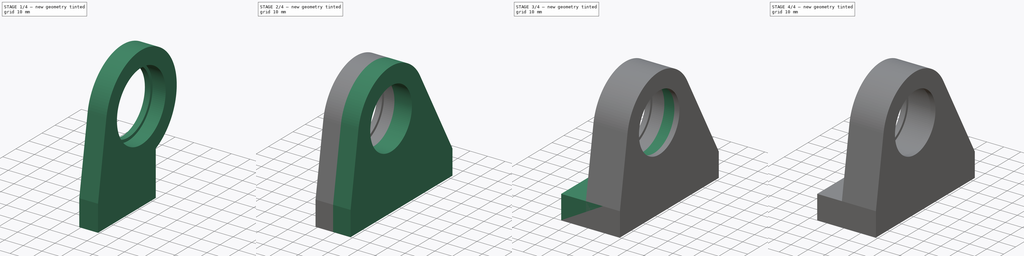
[diagram: build sequence overview — one tinted view per stage of 4, left to right]
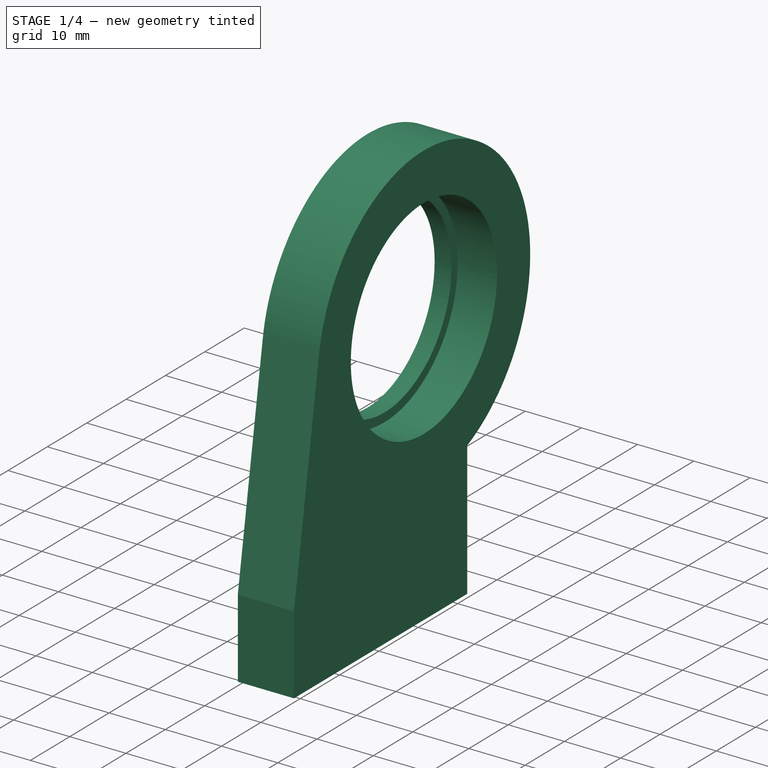
[diagram: stage 1 of 4 — iso view after this stage's code; geometry added in this stage tinted green]
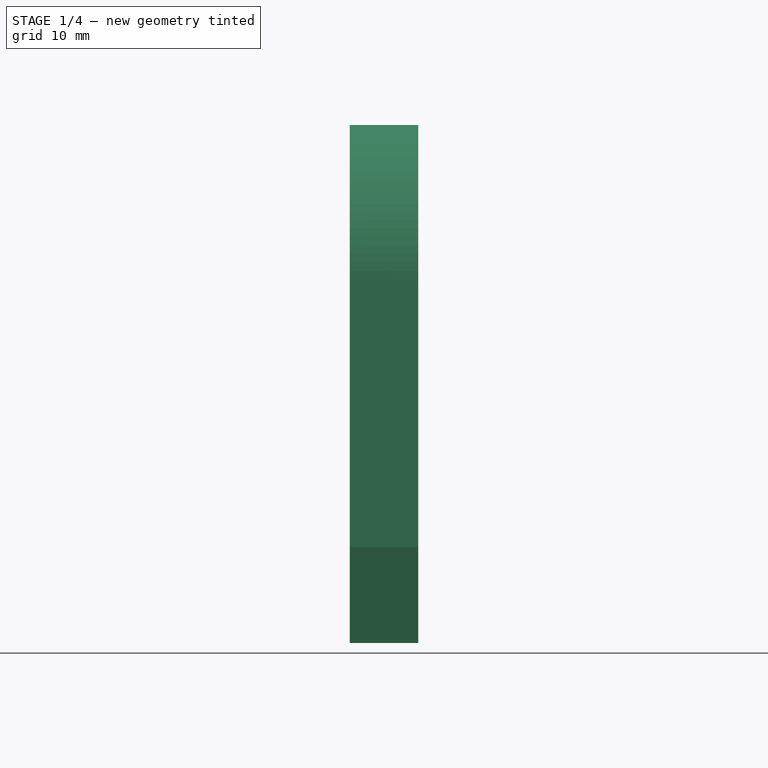
[diagram: stage 1 of 4 — front view after this stage's code; geometry added in this stage tinted green]
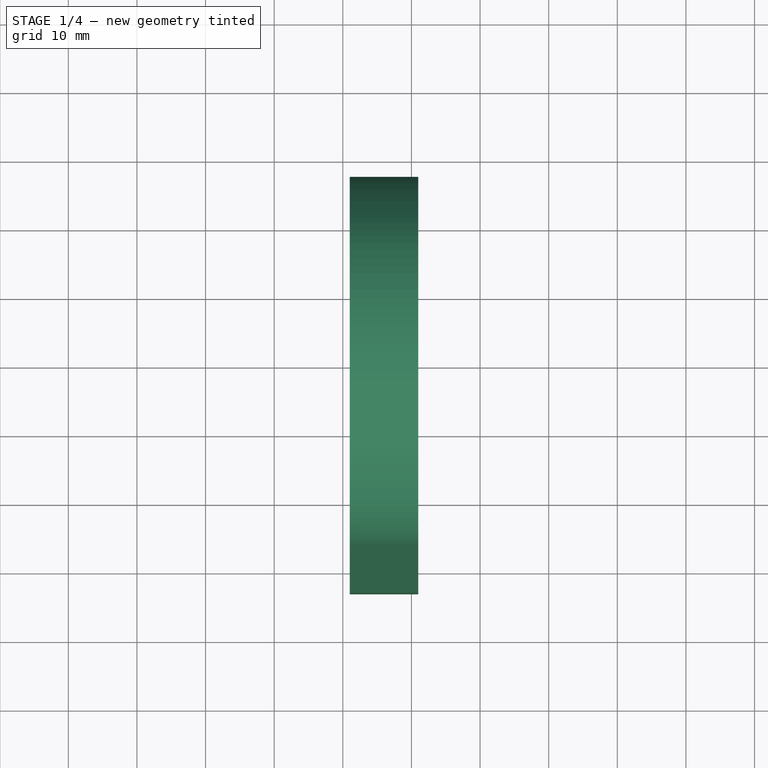
[diagram: stage 1 of 4 — top view after this stage's code; geometry added in this stage tinted green]
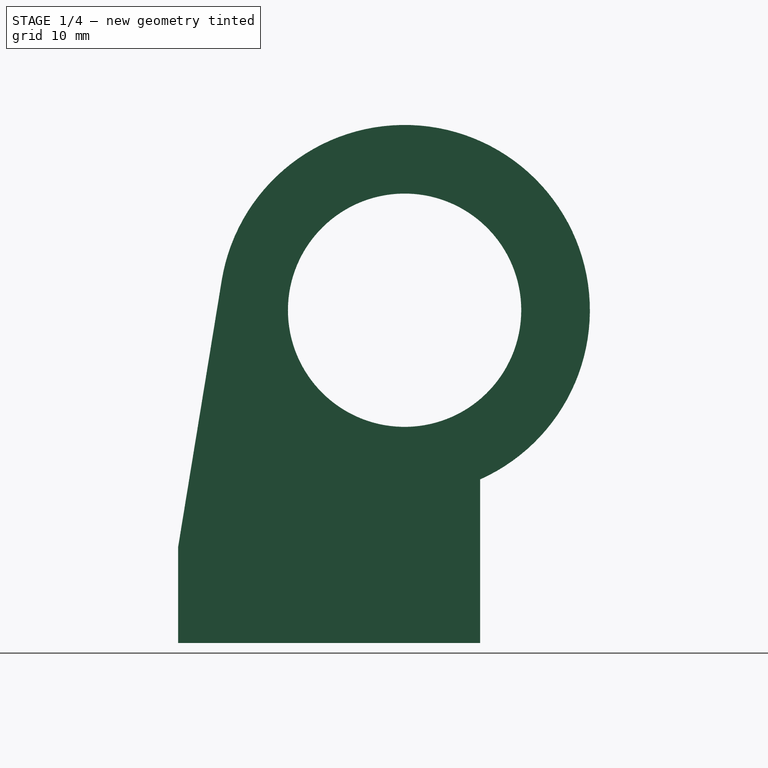
[diagram: stage 1 of 4 — right view after this stage's code; geometry added in this stage tinted green]
FCSTD DOCUMENT  (FreeCAD 0.21R32110 (Git))
Label: Pitch_Pulley_Mount
License: All rights reserved
LicenseURL: http://en.wikipedia.org/wiki/All_rights_reserved
objects: Sketcher::SketchObject×9, PartDesign::Pocket×4, PartDesign::Pad×3, PartDesign::Hole×2, PartDesign::Body×2, PartDesign::Chamfer×1, App::Part×1
note: 31 computed .brp shape members not serialized (recipe doc carries the construction recipe); baked Part::Feature solids carry a one-line shape summary decoded from their .brp

FEATURE [Sketcher::SketchObject] Sketch049
  AttachmentOffset = pos=(0,0,81) rot=(0,0,1;0rad)
  FullyConstrained = true
  MapMode = 5
  Placement = pos=(81,-1.8e-14,1.8e-14) rot=(0.57735,0.57735,0.57735;2.0944rad)
  Support = -> [YZ_Plane017]
  sketch-geometry (6):
    g0: ArcOfCircle CenterX=-10 CenterY=-10 CenterZ=0 NormalX=0 NormalY=0 NormalZ=1 AngleXU=0 Radius=27 StartAngle=5.132 EndAngle=9.26269
    g1: LineSegment StartX=-43 StartY=-58.5 StartZ=0 EndX=1 EndY=-58.5 EndZ=0
    g2: LineSegment StartX=1 StartY=-58.5 StartZ=0 EndX=1 EndY=-34.6577 EndZ=0
    g3: LineSegment StartX=-43 StartY=-58.5 StartZ=0 EndX=-43 EndY=-44.5 EndZ=0
    g4: LineSegment StartX=-43 StartY=-44.5 StartZ=0 EndX=-36.6461 EndY=-5.64285 EndZ=0
    g5: Circle CenterX=-10 CenterY=-10 CenterZ=0 NormalX=0 NormalY=0 NormalZ=1 AngleXU=0 Radius=17
  constraints (17):
    c: DistanceX(g0) = -10
    c: DistanceY(g0) = -10
    c: Diameter(g0) = 54
    c: Horizontal(g1)
    c: Coincident(g2,g1)
    c: Vertical(g2)
    c: Vertical(g3)
    c: Distance(g3) = 14
    c: Coincident(g3,g1)
    c: Coincident(g4,g3)
    c: Tangent(g0,g4) = 1.5708
    c: DistanceX(g1) = -43
    c: DistanceY(g1) = -58.5
    c: Coincident(g5,g0)
    c: Diameter(g5) = 34
    c: Distance(g1) = 44
    c: Coincident(g0,g2)
FEATURE [PartDesign::Pad] Pad030
  Direction = (1,-2e-16,3e-16)
  Length = 10
  Length2 = 10
  Placement = pos=(0,0,0) rot=(0.57735,0.57735,0.57735;2.0944rad)
  Profile = -> Sketch049
  ReferenceAxis = -> Sketch049 [N_Axis]
  Type = 0
FEATURE [Sketcher::SketchObject] Sketch
  AttachmentOffset = pos=(0,0,91) rot=(0,0,1;0rad)
  FullyConstrained = true
  MapMode = 5
  Placement = pos=(91,-2.02e-14,2.02e-14) rot=(0.57735,0.57735,0.57735;2.0944rad)
  Support = -> [YZ_Plane017]
  sketch-geometry (1):
    g0: Circle CenterX=-10 CenterY=-10 CenterZ=0 NormalX=0 NormalY=0 NormalZ=1 AngleXU=0 Radius=18.575
  constraints (3):
    c: DistanceY(g0) = -10
    c: DistanceX(g0) = -10
    c: Diameter(g0) = 37.15
FEATURE [PartDesign::Pocket] Pocket
  BaseFeature = -> Pad030
  Direction = (-1,2e-16,-3e-16)
  Length = 7
  Length2 = 5
  Placement = pos=(0,0,0) rot=(0.57735,0.57735,0.57735;2.0944rad)
  Profile = -> Sketch
  ReferenceAxis = -> Sketch [N_Axis]
  Type = 0
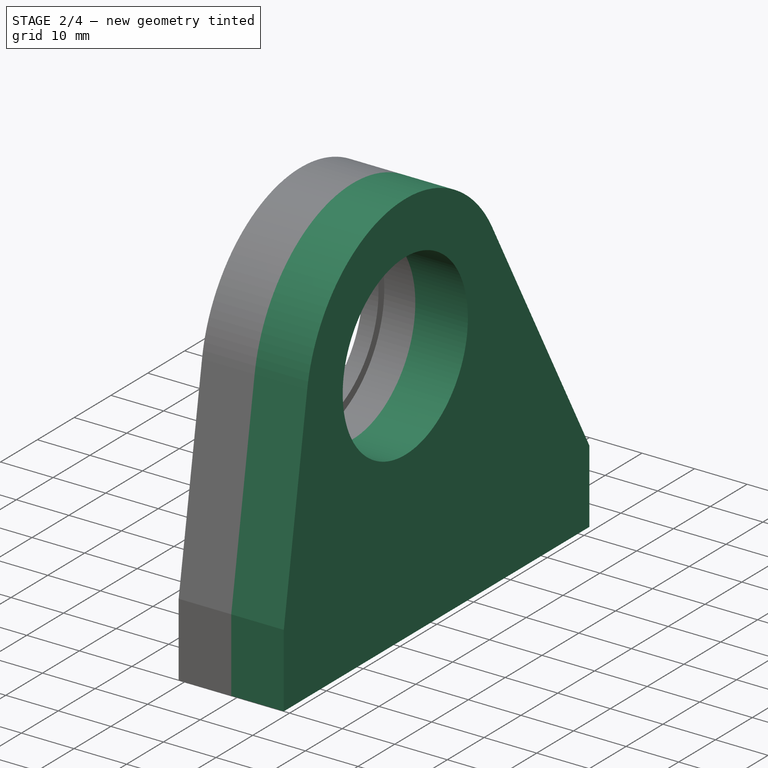
[diagram: stage 2 of 4 — iso view after this stage's code; geometry added in this stage tinted green]
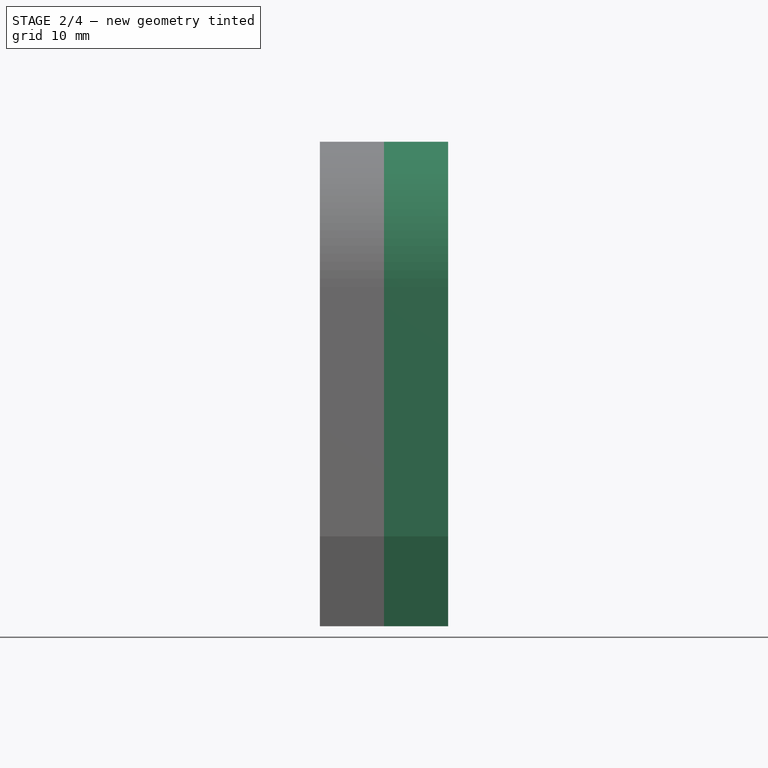
[diagram: stage 2 of 4 — front view after this stage's code; geometry added in this stage tinted green]
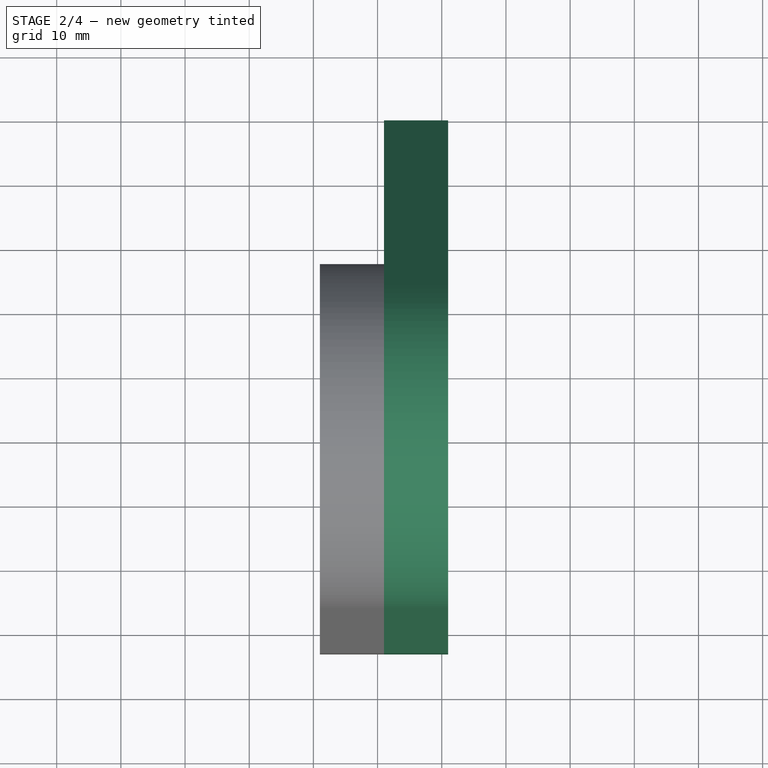
[diagram: stage 2 of 4 — top view after this stage's code; geometry added in this stage tinted green]
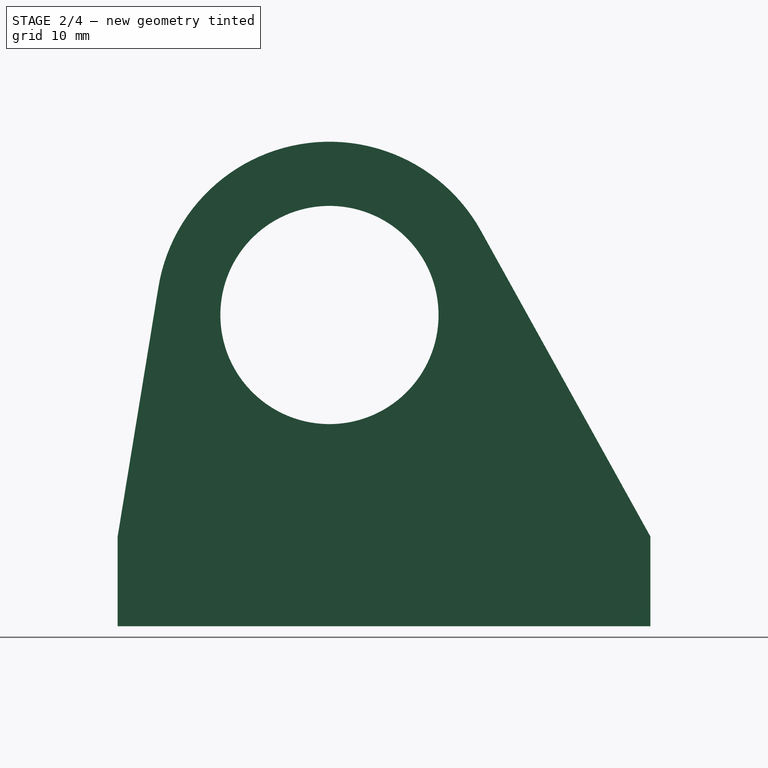
[diagram: stage 2 of 4 — right view after this stage's code; geometry added in this stage tinted green]
FEATURE [Sketcher::SketchObject] Sketch053
  AttachmentOffset = pos=(0,0,91) rot=(0,0,1;0rad)
  FullyConstrained = true
  MapMode = 5
  Placement = pos=(91,-2.02e-14,2.02e-14) rot=(0.57735,0.57735,0.57735;2.0944rad)
  Support = -> [YZ_Plane019]
  sketch-geometry (7):
    g0: ArcOfCircle CenterX=-10 CenterY=-10 CenterZ=0 NormalX=0 NormalY=0 NormalZ=1 AngleXU=0 Radius=27 StartAngle=0.506238 EndAngle=2.97951
    g1: LineSegment StartX=-43 StartY=-58.5 StartZ=0 EndX=40 EndY=-58.5 EndZ=0
    g2: LineSegment StartX=40 StartY=-58.5 StartZ=0 EndX=40 EndY=-44.5 EndZ=0
    g3: LineSegment StartX=40 StartY=-44.5 StartZ=0 EndX=13.6135 EndY=3.09205 EndZ=0
    g4: Circle CenterX=-10 CenterY=-10 CenterZ=0 NormalX=0 NormalY=0 NormalZ=1 AngleXU=0 Radius=17
    g5: LineSegment StartX=-43 StartY=-58.5 StartZ=0 EndX=-43 EndY=-44.5 EndZ=0
    g6: LineSegment StartX=-43 StartY=-44.5 StartZ=0 EndX=-36.6461 EndY=-5.64285 EndZ=0
  constraints (19):
    c: DistanceX(g0) = -10
    c: DistanceY(g0) = -10
    c: Horizontal(g1)
    c: DistanceY(g1) = -58.5
    c: Diameter(g0) = 54
    c: Coincident(g2,g1)
    c: Vertical(g2)
    c: DistanceY(g2,g2) = 14
    c: Coincident(g3,g2)
    c: Tangent(g0,g3) = -1.5708
    c: Coincident(g4,g0)
    c: Diameter(g4) = 34
    c: DistanceX(g1) = 40
    c: DistanceX(g1) = -43
    c: Coincident(g5,g1)
    c: Vertical(g5)
    c: Equal(g5,g2)
    c: Coincident(g6,g5)
    c: Tangent(g0,g6) = 1.5708
FEATURE [PartDesign::Pad] Pad033
  Direction = (1,-2e-16,3e-16)
  Length = 10
  Length2 = 10
  Placement = pos=(0,0,0) rot=(0.57735,0.57735,0.57735;2.0944rad)
  Profile = -> Sketch053
  ReferenceAxis = -> Sketch053 [N_Axis]
  Type = 0
FEATURE [Sketcher::SketchObject] Sketch031
  AttachmentOffset = pos=(0,0,81) rot=(0,0,1;0rad)
  FullyConstrained = true
  MapMode = 5
  Placement = pos=(81,-1.8e-14,1.8e-14) rot=(0.57735,0.57735,0.57735;2.0944rad)
  Support = -> [YZ_Plane017]
  sketch-geometry (2):
    g0: Circle CenterX=-34 CenterY=-51.5 CenterZ=0 NormalX=0 NormalY=0 NormalZ=1 AngleXU=0 Radius=2.65
    g1: Circle CenterX=-8 CenterY=-51.5 CenterZ=0 NormalX=0 NormalY=0 NormalZ=1 AngleXU=0 Radius=2.65
  constraints (6):
    c: Diameter(g0) = 5.3
    c: Distance(g0,g1) = 26
    c: DistanceY(g1) = -51.5
    c: DistanceX(g1) = -8
    c: Equal(g0,g1)
    c: Horizontal(g0,g1)
FEATURE [PartDesign::Hole] Hole
  BaseFeature = -> Pocket
  CustomThreadClearance = 0
  Depth = 25
  DepthType = 0
  Diameter = 5.3
  DrillForDepth = false
  DrillPoint = 1
  DrillPointAngle = 118
  HoleCutCountersinkAngle = 90
  HoleCutCustomValues = false
  HoleCutDepth = 5.4
  HoleCutDiameter = 8.7
  HoleCutType = 1
  ModelThread = false
  Placement = pos=(0,0,0) rot=(0.57735,0.57735,0.57735;2.0944rad)
  Profile = -> Sketch031
  Reversed = true
  Tapered = false
  TaperedAngle = 90
  ThreadClass = 0
  ThreadDepth = 25
  ThreadDepthType = 0
  ThreadDirection = 0
  ThreadFit = 1
  ThreadSize = 13
  ThreadType = 1
  Threaded = false
  UseCustomThreadClearance = false
FEATURE [PartDesign::Body] Body014  label="Pitch Encoder Pulley Mount"
  Group = -> [Sketch053,Pad033,Sketch057,Pocket018,Sketch058,Pad,Chamfer,Sketch059,Pocket019,Sketch060,Hole001]
  Origin = -> Origin019
  Placement = pos=(18.5,0,0) rot=(0,0,1;0rad)
  Tip = -> Hole001
FEATURE [Sketcher::SketchObject] Sketch061
  AttachmentOffset = pos=(0,0,81) rot=(0,0,1;0rad)
  FullyConstrained = true
  MapMode = 5
  Placement = pos=(81,-1.8e-14,1.8e-14) rot=(0.57735,0.57735,0.57735;2.0944rad)
  Support = -> [YZ_Plane017]
  sketch-geometry (6):
    g0: LineSegment StartX=-10 StartY=-10 StartZ=0 EndX=-29.0526 EndY=1 EndZ=0
    g1: LineSegment StartX=-10 StartY=-10 StartZ=0 EndX=9.05256 EndY=1 EndZ=0
    g2: LineSegment StartX=-10 StartY=-10 StartZ=0 EndX=-10 EndY=-32 EndZ=0
    g3: Circle CenterX=-29.0526 CenterY=1 CenterZ=0 NormalX=0 NormalY=0 NormalZ=1 AngleXU=0 Radius=2.2
    g4: Circle CenterX=9.05256 CenterY=1 CenterZ=0 NormalX=0 NormalY=0 NormalZ=1 AngleXU=0 Radius=2.2
    g5: Circle CenterX=-10 CenterY=-32 CenterZ=0 NormalX=0 NormalY=0 NormalZ=1 AngleXU=0 Radius=2.2
  constraints (16):
    c: DistanceY(g0) = -10
    c: DistanceX(g0) = -10
    c: Coincident(g1,g0)
    c: Coincident(g2,g0)
    c: Vertical(g2)
    c: Equal(g0,g1)
    c: Equal(g1,g2)
    c: Distance(g0) = 22
    c: Angle(g0,g2) = 2.0944
    c: Angle(g2,g1) = 2.0944
    c: Coincident(g3,g0)
    c: Coincident(g4,g1)
    c: Coincident(g5,g2)
    c: Equal(g3,g4)
    c: Equal(g3,g5)
    c: Diameter(g3) = 4.4
FEATURE [PartDesign::Pocket] Pocket020
  BaseFeature = -> Hole
  Direction = (-1,2e-16,-3e-16)
  Length = 5
  Length2 = 5
  Placement = pos=(0,0,0) rot=(0.57735,0.57735,0.57735;2.0944rad)
  Profile = -> Sketch061
  ReferenceAxis = -> Sketch061 [N_Axis]
  Reversed = true
  Type = 1
FEATURE [PartDesign::Body] Body012  label="Pitch Encoder Mount"
  Group = -> [Sketch049,Pad030,Sketch,Pocket,Sketch031,Hole,Sketch061,Pocket020]
  Origin = -> Origin017
  Placement = pos=(-6,0,0) rot=(0,0,1;0rad)
  Tip = -> Pocket020
FEATURE [App::Part] Part  label="Pitch_Pulley_Mount_Assy"
  Group = -> [Body012,Body014]
  Origin = -> Origin
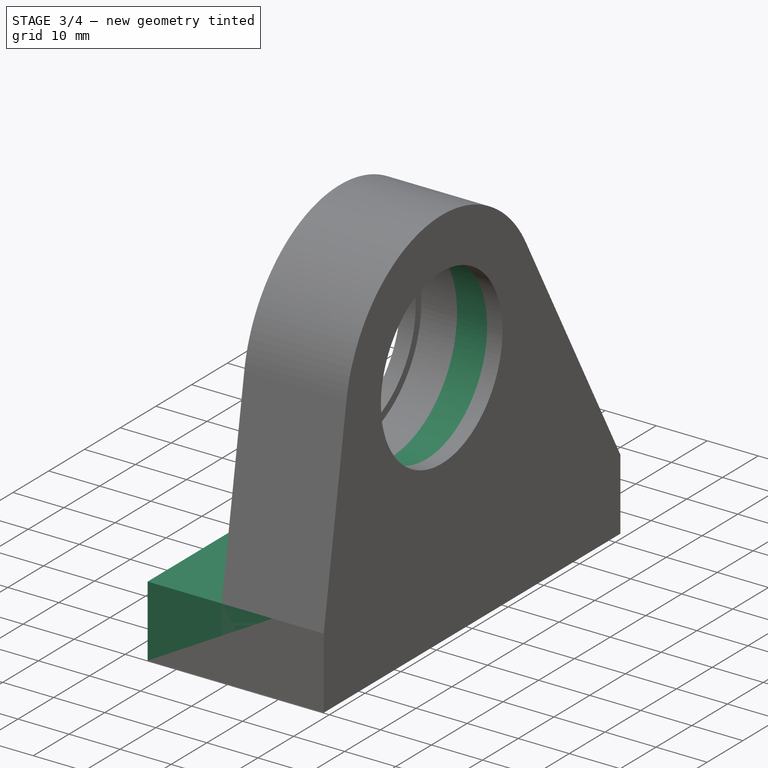
[diagram: stage 3 of 4 — iso view after this stage's code; geometry added in this stage tinted green]
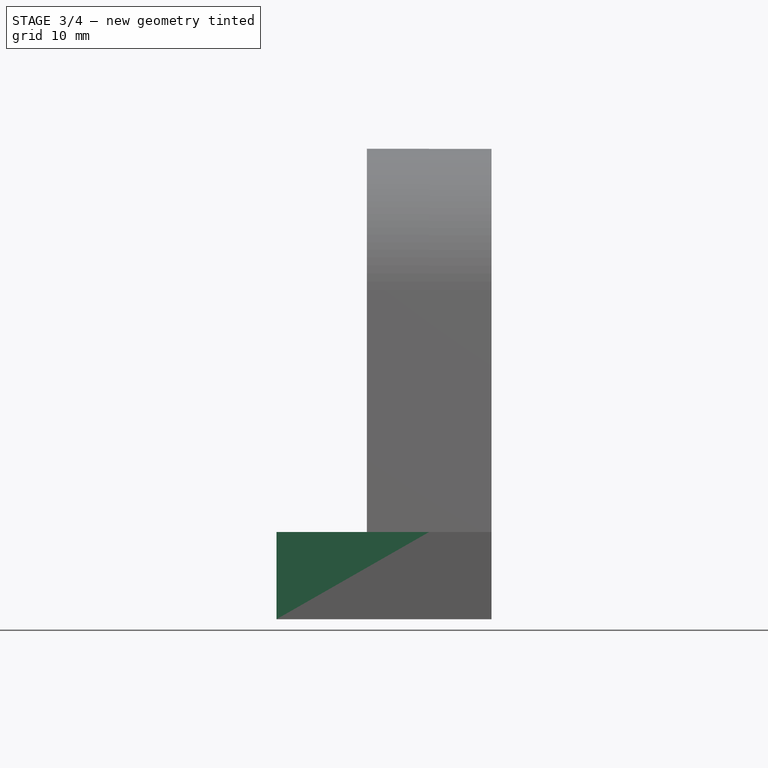
[diagram: stage 3 of 4 — front view after this stage's code; geometry added in this stage tinted green]
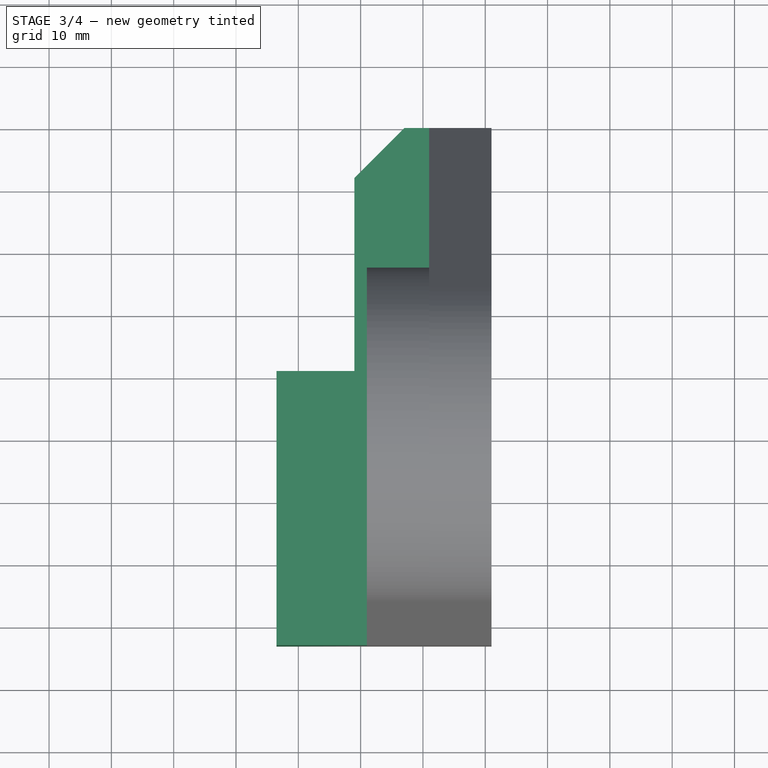
[diagram: stage 3 of 4 — top view after this stage's code; geometry added in this stage tinted green]
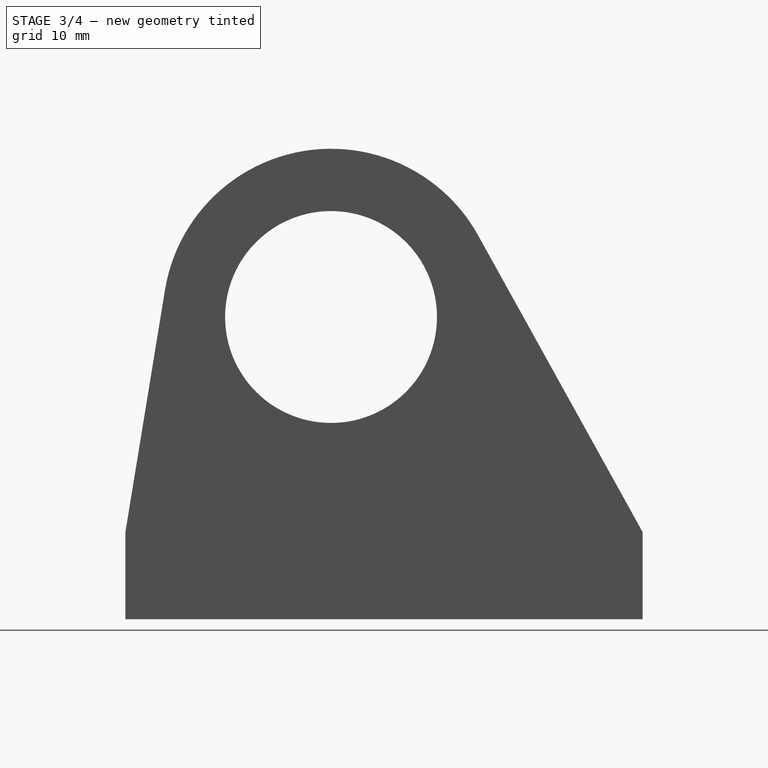
[diagram: stage 3 of 4 — right view after this stage's code; geometry added in this stage tinted green]
FEATURE [Sketcher::SketchObject] Sketch057
  AttachmentOffset = pos=(0,0,91) rot=(0,0,1;0rad)
  FullyConstrained = true
  MapMode = 5
  Placement = pos=(91,-2.02e-14,2.02e-14) rot=(0.57735,0.57735,0.57735;2.0944rad)
  Support = -> [YZ_Plane019]
  sketch-geometry (1):
    g0: Circle CenterX=-10 CenterY=-10 CenterZ=0 NormalX=0 NormalY=0 NormalZ=1 AngleXU=0 Radius=18.575
  constraints (3):
    c: Diameter(g0) = 37.15
    c: DistanceY(g0) = -10
    c: DistanceX(g0) = -10
FEATURE [PartDesign::Pocket] Pocket018
  BaseFeature = -> Pad033
  Direction = (-1,2e-16,-3e-16)
  Length = 7
  Length2 = 5
  Placement = pos=(0,0,0) rot=(0.57735,0.57735,0.57735;2.0944rad)
  Profile = -> Sketch057
  ReferenceAxis = -> Sketch057 [N_Axis]
  Reversed = true
  Type = 0
FEATURE [Sketcher::SketchObject] Sketch058
  AttachmentOffset = pos=(0,0,-58.5) rot=(0,0,1;0rad)
  FullyConstrained = true
  MapMode = 5
  Placement = pos=(0,0,-58.5) rot=(0,0,1;0rad)
  Support = -> [XY_Plane019]
  sketch-geometry (6):
    g0: LineSegment StartX=91 StartY=40 StartZ=0 EndX=79 EndY=40 EndZ=0
    g1: LineSegment StartX=79 StartY=40 StartZ=0 EndX=79 EndY=1 EndZ=0
    g2: LineSegment StartX=79 StartY=1 StartZ=0 EndX=66.5 EndY=1 EndZ=0
    g3: LineSegment StartX=66.5 StartY=1 StartZ=0 EndX=66.5 EndY=-43 EndZ=0
    g4: LineSegment StartX=66.5 StartY=-43 StartZ=0 EndX=91 EndY=-43 EndZ=0
    g5: LineSegment StartX=91 StartY=-43 StartZ=0 EndX=91 EndY=40 EndZ=0
  constraints (18):
    c: Coincident(g0,g1)
    c: Vertical(g1)
    c: Coincident(g1,g2)
    c: Horizontal(g2)
    c: Coincident(g2,g3)
    c: Vertical(g3)
    c: Coincident(g3,g4)
    c: Horizontal(g4)
    c: Coincident(g4,g5)
    c: Coincident(g5,g0)
    c: Vertical(g5)
    c: Horizontal(g0)
    c: Distance(g0) = 12
    c: DistanceY(g0) = 40
    c: DistanceX(g0) = 91
    c: Distance(g5) = 83
    c: Distance(g4) = 24.5
    c: DistanceY(g3,g3) = 44
FEATURE [PartDesign::Pad] Pad
  BaseFeature = -> Pocket018
  Direction = (0,0,1)
  Length = 14
  Length2 = 10
  Placement = pos=(0,0,0) rot=(0.57735,0.57735,0.57735;2.0944rad)
  Profile = -> Sketch058
  ReferenceAxis = -> Sketch058 [N_Axis]
  Type = 0
FEATURE [PartDesign::Chamfer] Chamfer
  Angle = 45
  Base = -> Pad [Edge26]
  BaseFeature = -> Pad
  ChamferType = 0
  FlipDirection = false
  Placement = pos=(0,0,0) rot=(0.57735,0.57735,0.57735;2.0944rad)
  Size = 8
  Size2 = 1
  SupportTransform = false
  UseAllEdges = false
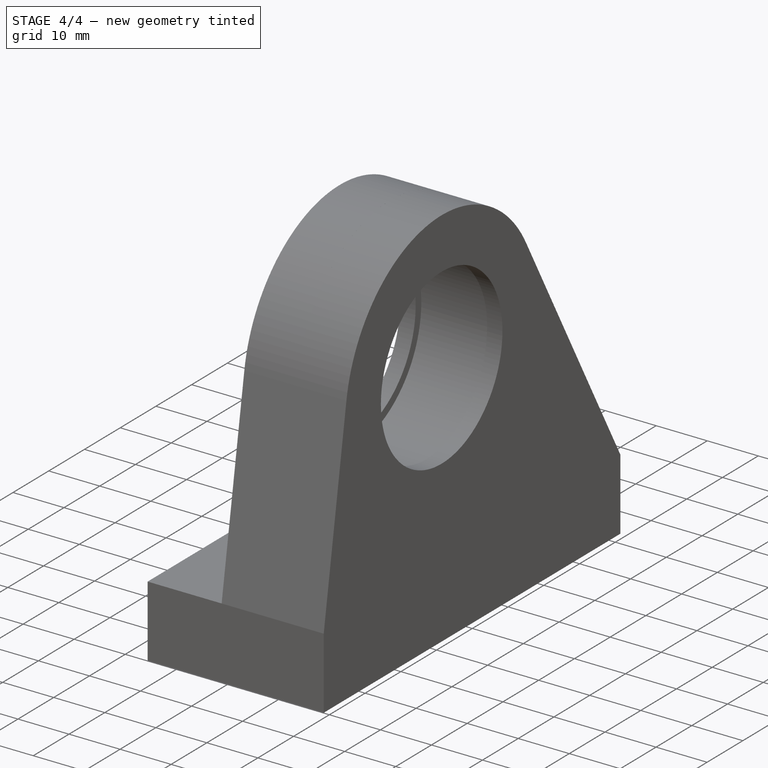
[diagram: stage 4 of 4 — iso view after this stage's code; geometry added in this stage tinted green]
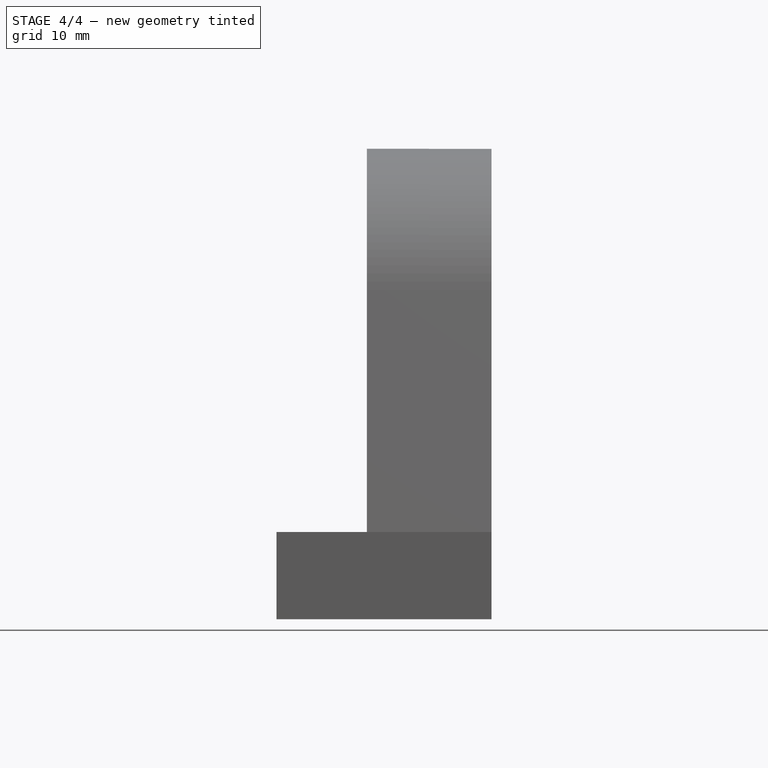
[diagram: stage 4 of 4 — front view after this stage's code; geometry added in this stage tinted green]
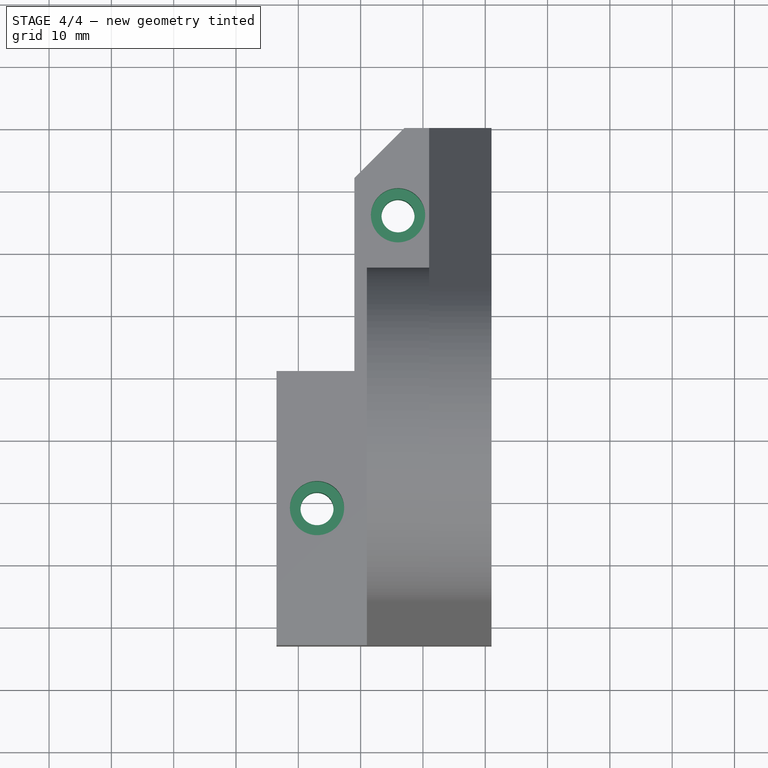
[diagram: stage 4 of 4 — top view after this stage's code; geometry added in this stage tinted green]
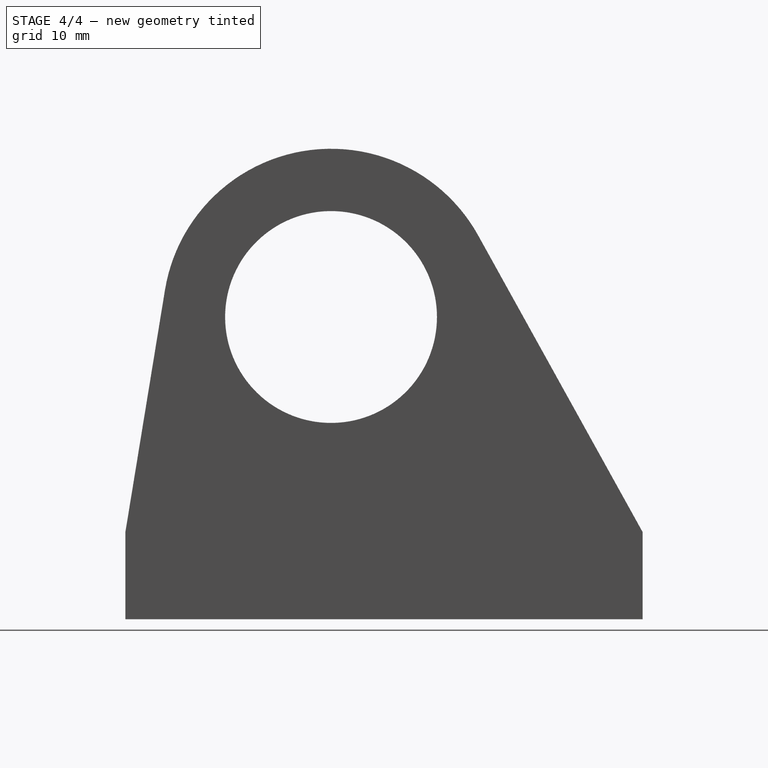
[diagram: stage 4 of 4 — right view after this stage's code; geometry added in this stage tinted green]
FEATURE [Sketcher::SketchObject] Sketch059
  AttachmentOffset = pos=(-15,-23,66.5) rot=(0,0,1;0rad)
  FullyConstrained = true
  MapMode = 5
  Placement = pos=(66.5,-15,-23) rot=(0.57735,0.57735,0.57735;2.0944rad)
  Support = -> [YZ_Plane019]
  sketch-geometry (2):
    g0: Circle CenterX=-19 CenterY=-28.5 CenterZ=0 NormalX=0 NormalY=0 NormalZ=1 AngleXU=0 Radius=3.5
    g1: Circle CenterX=7 CenterY=-28.5 CenterZ=0 NormalX=0 NormalY=0 NormalZ=1 AngleXU=0 Radius=3.5
  constraints (6):
    c: Diameter(g0) = 7
    c: DistanceX(g1) = 7
    c: DistanceY(g1) = -28.5
    c: Horizontal(g0,g1)
    c: Distance(g0,g1) = 26
    c: Equal(g0,g1)
FEATURE [PartDesign::Pocket] Pocket019
  BaseFeature = -> Chamfer
  Direction = (-1,2e-16,-3e-16)
  Length = 12
  Length2 = 5
  Placement = pos=(0,0,0) rot=(0.57735,0.57735,0.57735;2.0944rad)
  Profile = -> Sketch059
  ReferenceAxis = -> Sketch059 [N_Axis]
  Reversed = true
  Type = 0
FEATURE [Sketcher::SketchObject] Sketch060
  AttachmentOffset = pos=(1,0,-44.5) rot=(0,0,1;0rad)
  FullyConstrained = true
  MapMode = 5
  Placement = pos=(1,0,-44.5) rot=(0,0,1;0rad)
  Support = -> [XY_Plane019]
  sketch-geometry (3):
    g0: Circle CenterX=85 CenterY=26 CenterZ=0 NormalX=0 NormalY=0 NormalZ=1 AngleXU=0 Radius=4.35
    g1: Circle CenterX=72 CenterY=-21 CenterZ=0 NormalX=0 NormalY=0 NormalZ=1 AngleXU=0 Radius=4.35
    g2: Circle CenterX=85 CenterY=-34 CenterZ=0 NormalX=0 NormalY=0 NormalZ=1 AngleXU=0 Radius=4.35
  constraints (9):
    c: Equal(g0,g1)
    c: Equal(g1,g2)
    c: Diameter(g0) = 8.7
    c: Vertical(g0,g2)
    c: DistanceX(g0) = 85
    c: DistanceY(g0) = 26
    c: Distance(g0,g2) = 60
    c: DistanceX(g1) = 72
    c: DistanceY(g1) = -21
FEATURE [PartDesign::Hole] Hole001
  BaseFeature = -> Pocket019
  CustomThreadClearance = 0
  Depth = 237.1
  DepthType = 1
  Diameter = 5.3
  DrillForDepth = false
  DrillPoint = 1
  DrillPointAngle = 118
  HoleCutCountersinkAngle = 90
  HoleCutCustomValues = false
  HoleCutDepth = 5.4
  HoleCutDiameter = 8.7
  HoleCutType = 1
  ModelThread = false
  Placement = pos=(0,0,0) rot=(0.57735,0.57735,0.57735;2.0944rad)
  Profile = -> Sketch060
  Tapered = false
  TaperedAngle = 90
  ThreadClass = 0
  ThreadDepth = 237.1
  ThreadDepthType = 0
  ThreadDirection = 0
  ThreadFit = 1
  ThreadSize = 13
  ThreadType = 1
  Threaded = false
  UseCustomThreadClearance = false
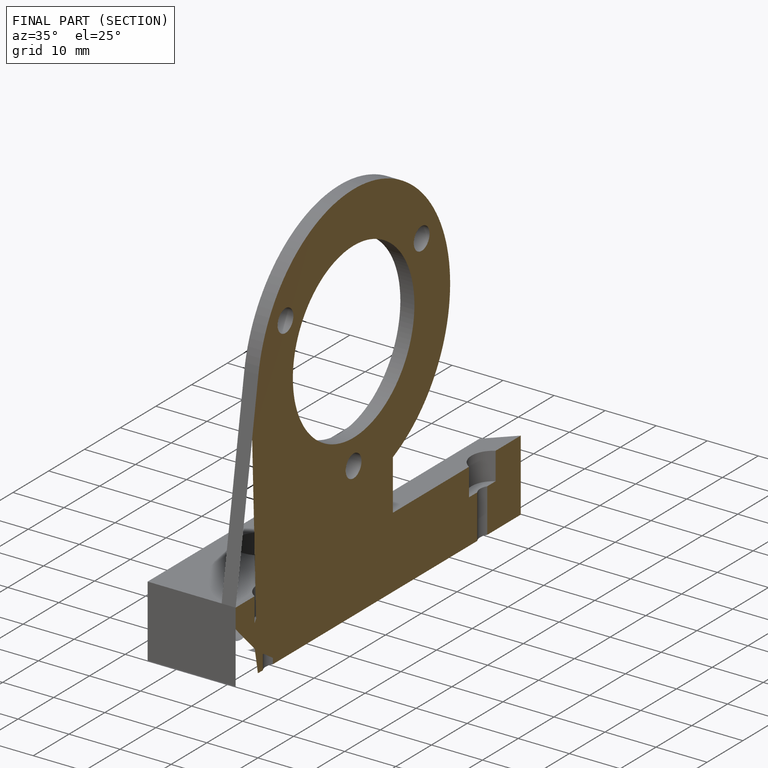
[diagram: finished part — half-section view (interior)]
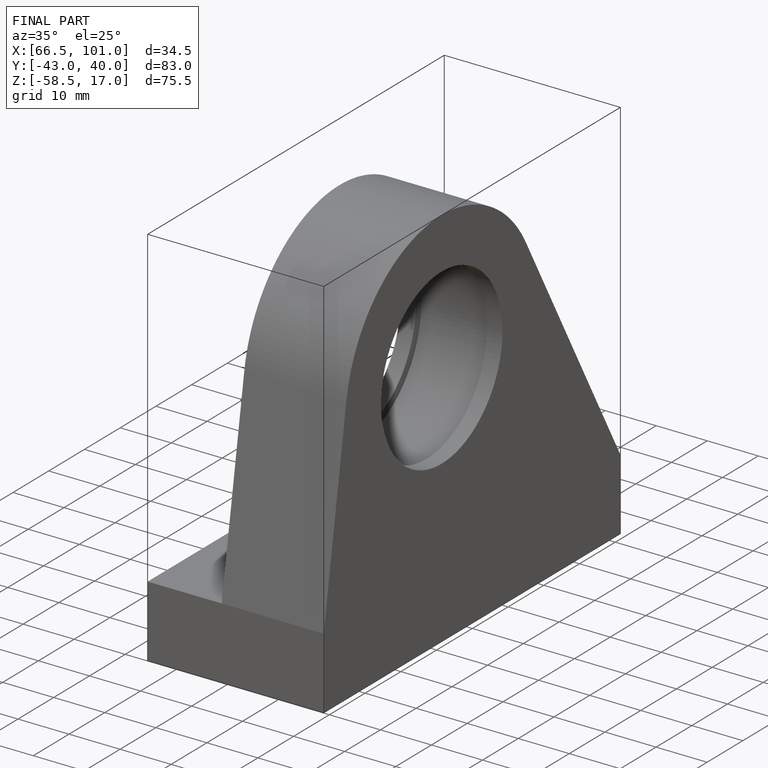
[diagram: finished part — iso view with bounding-box wireframe]
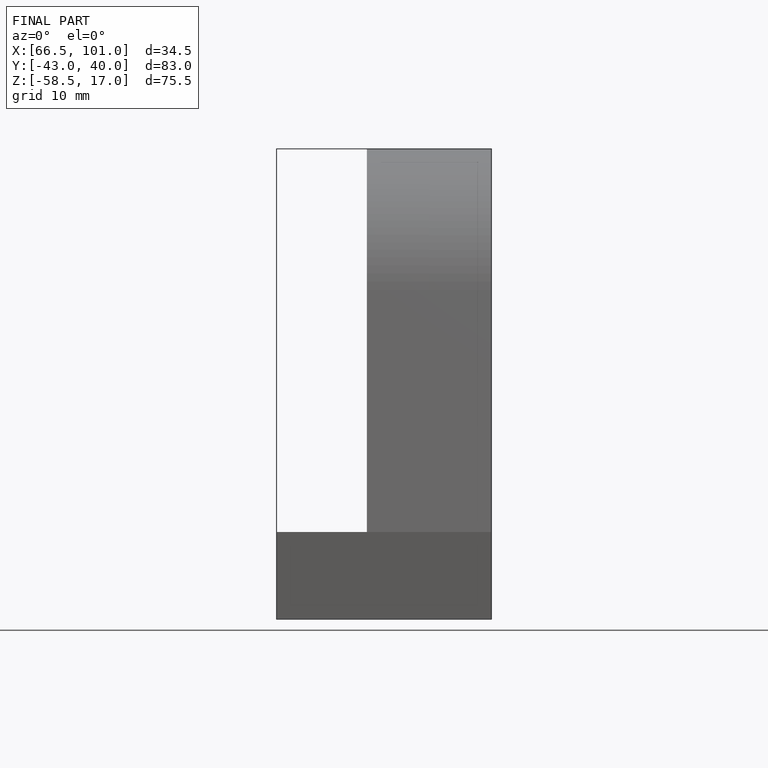
[diagram: finished part — front view with bounding-box wireframe]
